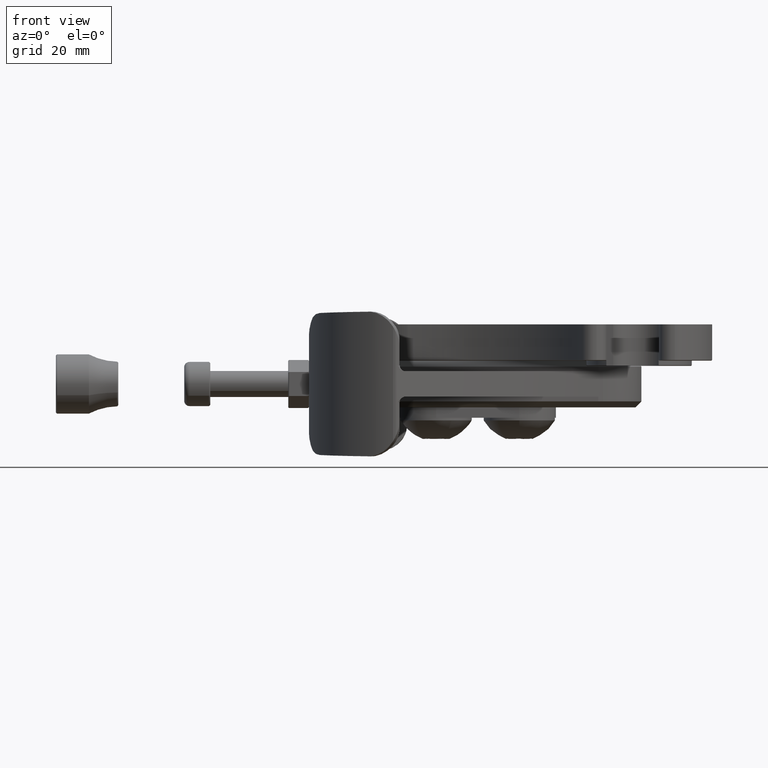
[diagram: clean part render]
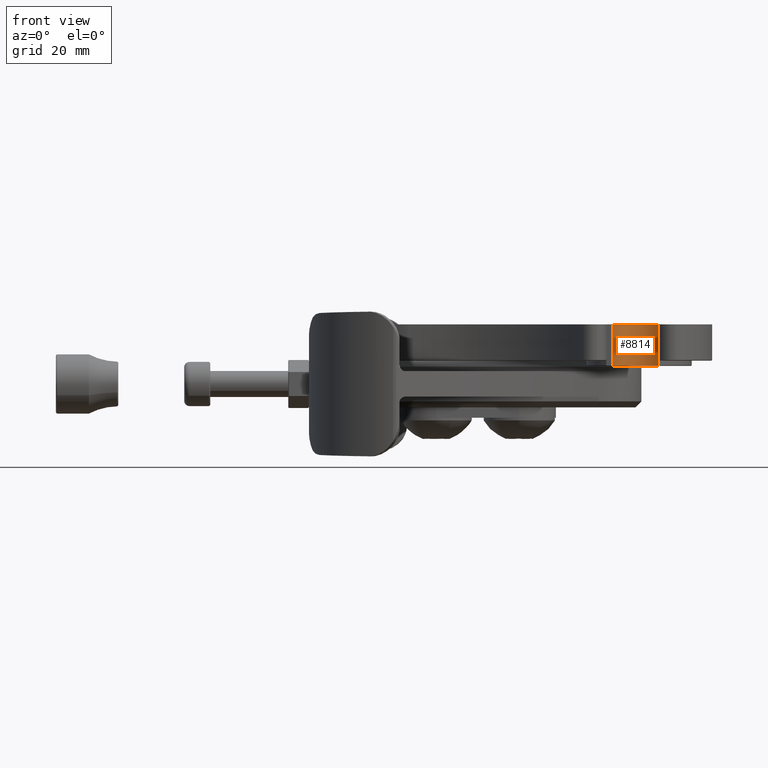
[diagram: same view with one face highlighted and labeled with its STEP entity id]
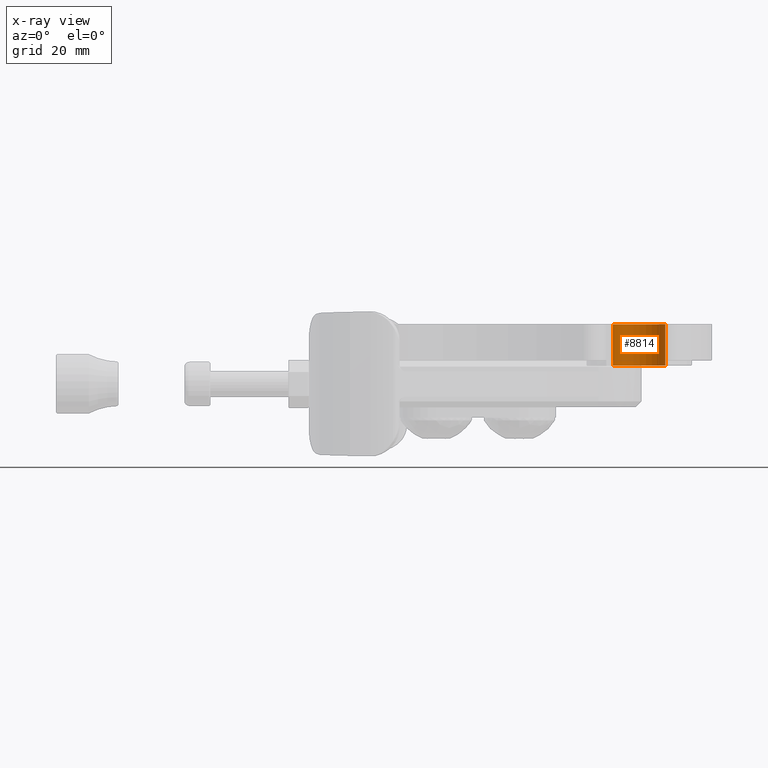
[diagram: x-ray of the same camera — body ghosted, the highlighted face saturated]
A machine part, front view. The second image highlights one B-rep face of the part: STEP entity #8814.
The next image is the same camera in x-ray: the body ghosted, the highlighted face saturated — about 0% of this face is hidden behind the body in this view.
In plain terms, the highlighted cylindrical surface (edge-blend (fillet) strip) has radius 5.08 mm, axis along (0, -0, 1).
Its self-contained STEP definition (entity closure, byte-faithful):
#640 = EDGE_CURVE ( 'NONE', #2666, #2637, #3008, .T. ) ;
#642 = EDGE_CURVE ( 'NONE', #2655, #2649, #3009, .T. ) ;
#643 = EDGE_CURVE ( 'NONE', #2666, #2655, #3011, .T. ) ;
#1255 = EDGE_LOOP ( 'NONE', ( #1678, #1662, #1660, #1661 ) ) ;
#1660 = ORIENTED_EDGE ( 'NONE', *, *, #643, .F. ) ;
#1661 = ORIENTED_EDGE ( 'NONE', *, *, #640, .T. ) ;
#1662 = ORIENTED_EDGE ( 'NONE', *, *, #642, .F. ) ;
#1678 = ORIENTED_EDGE ( 'NONE', *, *, #2771, .T. ) ;
#2637 = VERTEX_POINT ( 'NONE', #9375 ) ;
#2649 = VERTEX_POINT ( 'NONE', #9387 ) ;
#2655 = VERTEX_POINT ( 'NONE', #9393 ) ;
#2666 = VERTEX_POINT ( 'NONE', #9404 ) ;
#2771 = EDGE_CURVE ( 'NONE', #2637, #2649, #9047, .T. ) ;
#2894 = AXIS2_PLACEMENT_3D ( 'NONE', #8106, #8107, #8108 ) ;
#3008 = LINE ( 'NONE', #8090, #3010 ) ;
#3009 = LINE ( 'NONE', #8095, #3014 ) ;
#3010 = VECTOR ( 'NONE', #8091, 39.37007874015748100 ) ;
#3011 = CIRCLE ( 'NONE', #2894, 0.2000000000003972800 ) ;
#3014 = VECTOR ( 'NONE', #8102, 39.37007874015748100 ) ;
#4085 = CARTESIAN_POINT ( 'NONE',  ( 4.621306205145999400, -0.6521396501029995700, 0.0000000000000000000 ) ) ;
#4086 = DIRECTION ( 'NONE',  ( -0.0000000000000000000, -0.0000000000000000000, -1.000000000000000000 ) ) ;
#4087 = DIRECTION ( 'NONE',  ( 1.000000000000000000, 0.0000000000000000000, 0.0000000000000000000 ) ) ;
#4914 = AXIS2_PLACEMENT_3D ( 'NONE', #6162, #6157, #6159 ) ;
#6157 = DIRECTION ( 'NONE',  ( -0.0000000000000000000, -0.0000000000000000000, -1.000000000000000000 ) ) ;
#6159 = DIRECTION ( 'NONE',  ( -1.000000000000000000, 0.0000000000000000000, 0.0000000000000000000 ) ) ;
#6162 = CARTESIAN_POINT ( 'NONE',  ( 4.621306205145999400, -0.6521396501029995700, 0.2750000000000000200 ) ) ;
#6213 = FACE_OUTER_BOUND ( 'NONE', #1255, .T. ) ;
#6220 = CYLINDRICAL_SURFACE ( 'NONE', #4914, 0.2000000014898751000 ) ;
#7485 = AXIS2_PLACEMENT_3D ( 'NONE', #4085, #4086, #4087 ) ;
#8090 = CARTESIAN_POINT ( 'NONE',  ( 4.549155748002433200, -0.4656073147562168600, 0.2750000000000000200 ) ) ;
#8091 = DIRECTION ( 'NONE',  ( -0.0000000000000000000, -0.0000000000000000000, -1.000000000000000000 ) ) ;
#8095 = CARTESIAN_POINT ( 'NONE',  ( 4.693456826381020800, -0.8386719235770575500, 0.2750000000000000200 ) ) ;
#8102 = DIRECTION ( 'NONE',  ( -0.0000000000000000000, -0.0000000000000000000, -1.000000000000000000 ) ) ;
#8106 = CARTESIAN_POINT ( 'NONE',  ( 4.621306205146000300, -0.6521396501030000100, 0.3150000000000000000 ) ) ;
#8107 = DIRECTION ( 'NONE',  ( -0.0000000000000000000, -0.0000000000000000000, -1.000000000000000000 ) ) ;
#8108 = DIRECTION ( 'NONE',  ( 1.000000000000000000, 0.0000000000000000000, 0.0000000000000000000 ) ) ;
#8814 = ADVANCED_FACE ( 'NONE', ( #6213 ), #6220, .F. ) ;
#9047 = CIRCLE ( 'NONE', #7485, 0.2000000014898751000 ) ;
#9375 = CARTESIAN_POINT ( 'NONE',  ( 4.549155748002433200, -0.4656073147562168600, 0.0000000000000000000 ) ) ;
#9387 = CARTESIAN_POINT ( 'NONE',  ( 4.693456826381020800, -0.8386719235770575500, 0.0000000000000000000 ) ) ;
#9393 = CARTESIAN_POINT ( 'NONE',  ( 4.693456661752766700, -0.8386719840603970000, 0.3150000000000000000 ) ) ;
#9404 = CARTESIAN_POINT ( 'NONE',  ( 4.549155748539999600, -0.4656073161459999300, 0.3150000000000000000 ) ) ;